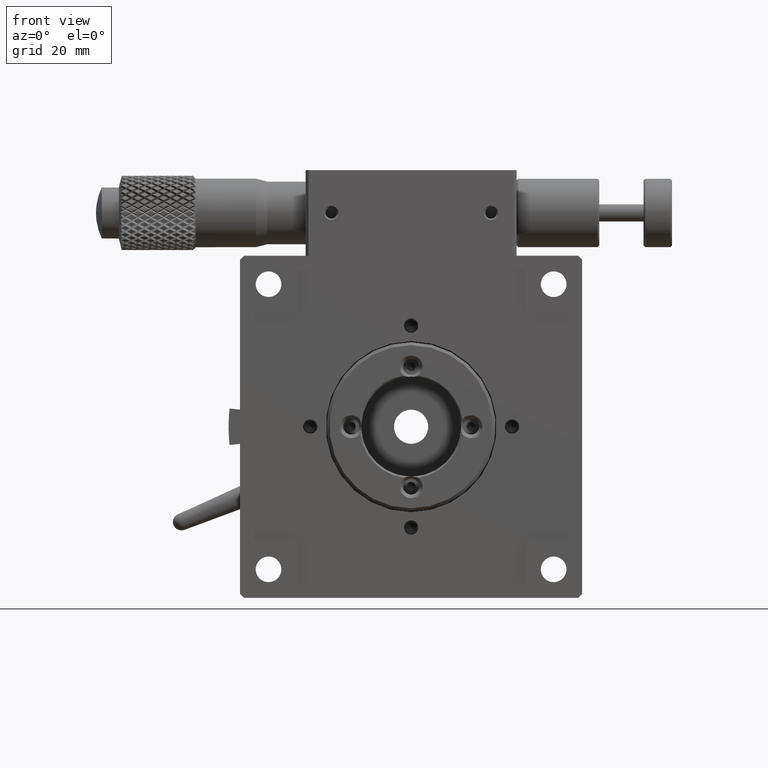
[diagram: clean part render]
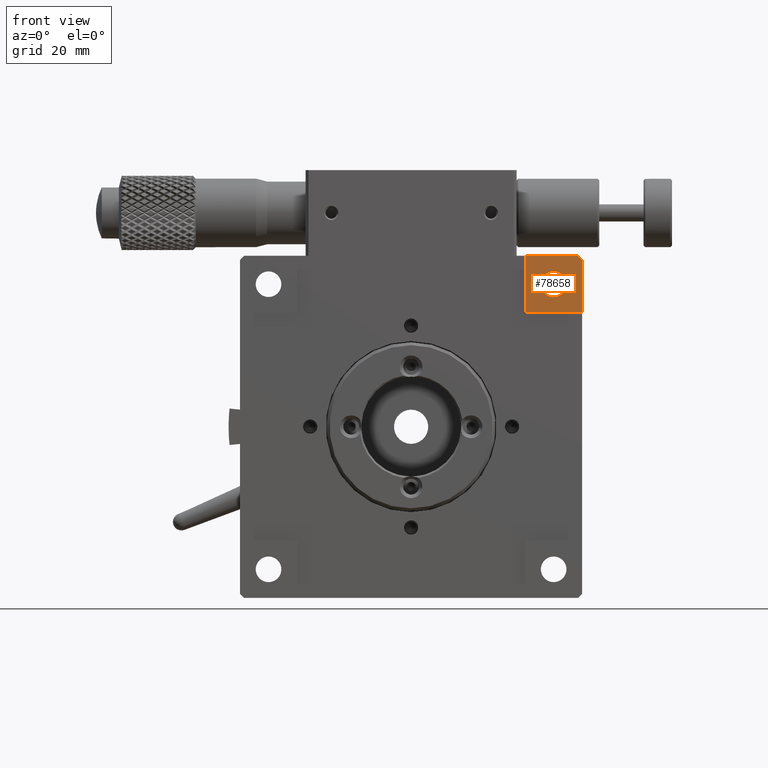
[diagram: same view with one face highlighted and labeled with its STEP entity id]
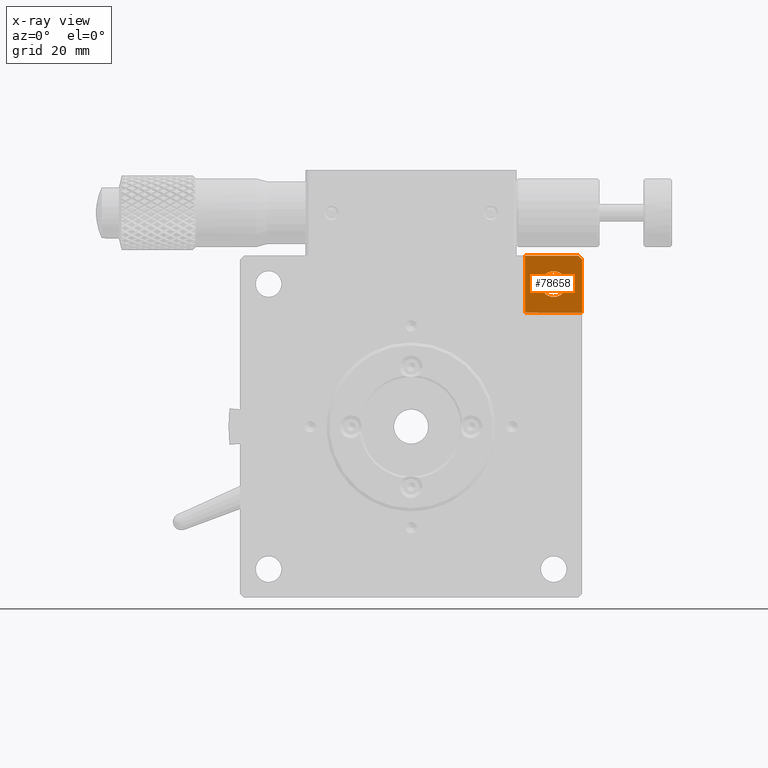
[diagram: x-ray of the same camera — body ghosted, the highlighted face saturated]
A machine part, front view. The second image highlights one B-rep face of the part: STEP entity #78658.
The next image is the same camera in x-ray: the body ghosted, the highlighted face saturated — about 0% of this face is hidden behind the body in this view.
In plain terms, the highlighted planar face has unit normal (0, 1, 0).
Its self-contained STEP definition (entity closure, byte-faithful):
#151 = DIRECTION ( 'NONE',  ( -1.000000000000000000, 0.000000000000000000, -0.000000000000000000 ) ) ;
#2231 = AXIS2_PLACEMENT_3D ( 'NONE', #56757, #18162, #84210 ) ;
#4006 = LINE ( 'NONE', #57150, #10294 ) ;
#7281 = EDGE_CURVE ( 'NONE', #67799, #30511, #78215, .T. ) ;
#10294 = VECTOR ( 'NONE', #63605, 1000.000000000000000 ) ;
#11328 = FACE_OUTER_BOUND ( 'NONE', #12563, .T. ) ;
#12563 = EDGE_LOOP ( 'NONE', ( #65056, #18122, #55961, #52443, #75769 ) ) ;
#14725 = ORIENTED_EDGE ( 'NONE', *, *, #27895, .F. ) ;
#17403 = DIRECTION ( 'NONE',  ( -1.000000000000000000, 0.000000000000000000, -0.000000000000000000 ) ) ;
#18122 = ORIENTED_EDGE ( 'NONE', *, *, #79631, .T. ) ;
#18162 = DIRECTION ( 'NONE',  ( 0.000000000000000000, 1.000000000000000000, 0.000000000000000000 ) ) ;
#22383 = EDGE_CURVE ( 'NONE', #78990, #47326, #4006, .T. ) ;
#24223 = CARTESIAN_POINT ( 'NONE',  ( 50.00000000000000711, 0.000000000000000000, 0.000000000000000000 ) ) ;
#25892 = PLANE ( 'NONE',  #2231 ) ;
#27895 = EDGE_CURVE ( 'NONE', #28725, #28725, #83288, .T. ) ;
#28445 = LINE ( 'NONE', #54168, #51710 ) ;
#28725 = VERTEX_POINT ( 'NONE', #36847 ) ;
#29807 = VECTOR ( 'NONE', #17403, 1000.000000000000000 ) ;
#30511 = VERTEX_POINT ( 'NONE', #24223 ) ;
#31910 = FACE_BOUND ( 'NONE', #51666, .T. ) ;
#36847 = CARTESIAN_POINT ( 'NONE',  ( 55.00000000000000000, 0.000000000000000000, -7.250000000000000888 ) ) ;
#37196 = VERTEX_POINT ( 'NONE', #57654 ) ;
#43088 = EDGE_CURVE ( 'NONE', #37196, #30511, #28445, .T. ) ;
#43347 = VECTOR ( 'NONE', #66593, 1000.000000000000000 ) ;
#45746 = EDGE_CURVE ( 'NONE', #78990, #37196, #62020, .T. ) ;
#45877 = CARTESIAN_POINT ( 'NONE',  ( 59.29000000000000625, 0.000000000000000000, 0.000000000000000000 ) ) ;
#47157 = CARTESIAN_POINT ( 'NONE',  ( 60.00000000000000000, 0.000000000000000000, -0.7100000000000000755 ) ) ;
#47326 = VERTEX_POINT ( 'NONE', #47157 ) ;
#48218 = VECTOR ( 'NONE', #151, 1000.000000000000000 ) ;
#51666 = EDGE_LOOP ( 'NONE', ( #14725 ) ) ;
#51710 = VECTOR ( 'NONE', #54585, 1000.000000000000000 ) ;
#52359 = DIRECTION ( 'NONE',  ( 0.000000000000000000, -1.000000000000000000, 0.000000000000000000 ) ) ;
#52443 = ORIENTED_EDGE ( 'NONE', *, *, #43088, .F. ) ;
#52474 = CARTESIAN_POINT ( 'NONE',  ( 59.28999999999999915, 0.000000000000000000, 0.000000000000000000 ) ) ;
#54168 = CARTESIAN_POINT ( 'NONE',  ( 50.00000000000000000, 0.000000000000000000, 0.000000000000000000 ) ) ;
#54585 = DIRECTION ( 'NONE',  ( 0.000000000000000000, 0.000000000000000000, 1.000000000000000000 ) ) ;
#55805 = CARTESIAN_POINT ( 'NONE',  ( 60.00000000000000000, 0.000000000000000000, -10.00000000000000000 ) ) ;
#55961 = ORIENTED_EDGE ( 'NONE', *, *, #7281, .T. ) ;
#56757 = CARTESIAN_POINT ( 'NONE',  ( 0.000000000000000000, 0.000000000000000000, 0.000000000000000000 ) ) ;
#57150 = CARTESIAN_POINT ( 'NONE',  ( 60.00000000000000000, 0.000000000000000000, -0.7099999999999999645 ) ) ;
#57654 = CARTESIAN_POINT ( 'NONE',  ( 50.00000000000000711, 0.000000000000000000, -10.00000000000000000 ) ) ;
#59959 = AXIS2_PLACEMENT_3D ( 'NONE', #71230, #52359, #65645 ) ;
#62020 = LINE ( 'NONE', #82592, #29807 ) ;
#63605 = DIRECTION ( 'NONE',  ( 0.000000000000000000, 0.000000000000000000, 1.000000000000000000 ) ) ;
#65056 = ORIENTED_EDGE ( 'NONE', *, *, #22383, .T. ) ;
#65645 = DIRECTION ( 'NONE',  ( 0.000000000000000000, 0.000000000000000000, -1.000000000000000000 ) ) ;
#65750 = CARTESIAN_POINT ( 'NONE',  ( 0.7099999999999999645, 0.000000000000000000, 0.000000000000000000 ) ) ;
#66173 = LINE ( 'NONE', #52474, #43347 ) ;
#66593 = DIRECTION ( 'NONE',  ( -0.7071067811865450192, 0.000000000000000000, 0.7071067811865500152 ) ) ;
#67799 = VERTEX_POINT ( 'NONE', #45877 ) ;
#71230 = CARTESIAN_POINT ( 'NONE',  ( 55.00000000000000000, 0.000000000000000000, -5.000000000000000000 ) ) ;
#75769 = ORIENTED_EDGE ( 'NONE', *, *, #45746, .F. ) ;
#78215 = LINE ( 'NONE', #65750, #48218 ) ;
#78658 = ADVANCED_FACE ( 'NONE', ( #31910, #11328 ), #25892, .F. ) ;
#78990 = VERTEX_POINT ( 'NONE', #55805 ) ;
#79631 = EDGE_CURVE ( 'NONE', #47326, #67799, #66173, .T. ) ;
#82592 = CARTESIAN_POINT ( 'NONE',  ( 50.00000000000000000, 0.000000000000000000, -10.00000000000000000 ) ) ;
#83288 = CIRCLE ( 'NONE', #59959, 2.250000000000001332 ) ;
#84210 = DIRECTION ( 'NONE',  ( 0.000000000000000000, -0.000000000000000000, 1.000000000000000000 ) ) ;